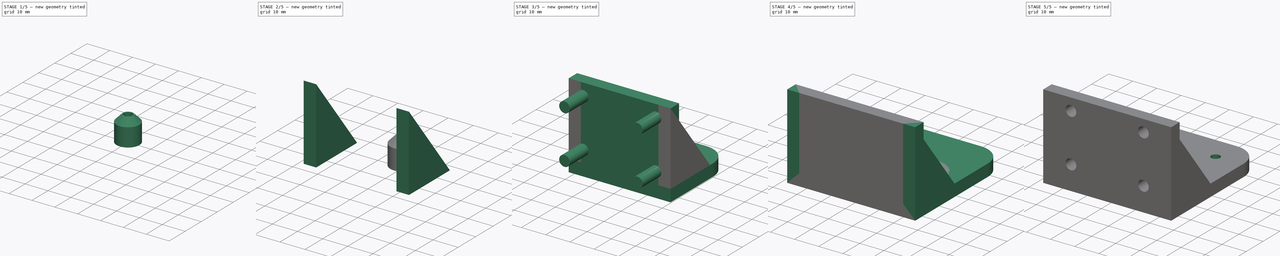
[diagram: build sequence overview — one tinted view per stage of 5, left to right]
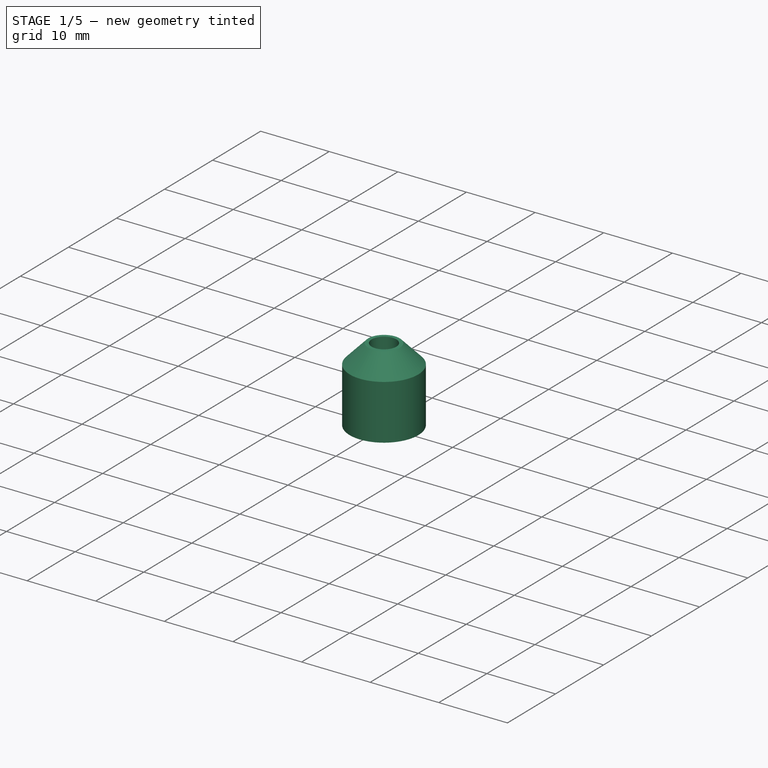
[diagram: stage 1 of 5 — iso view after this stage's code; geometry added in this stage tinted green]
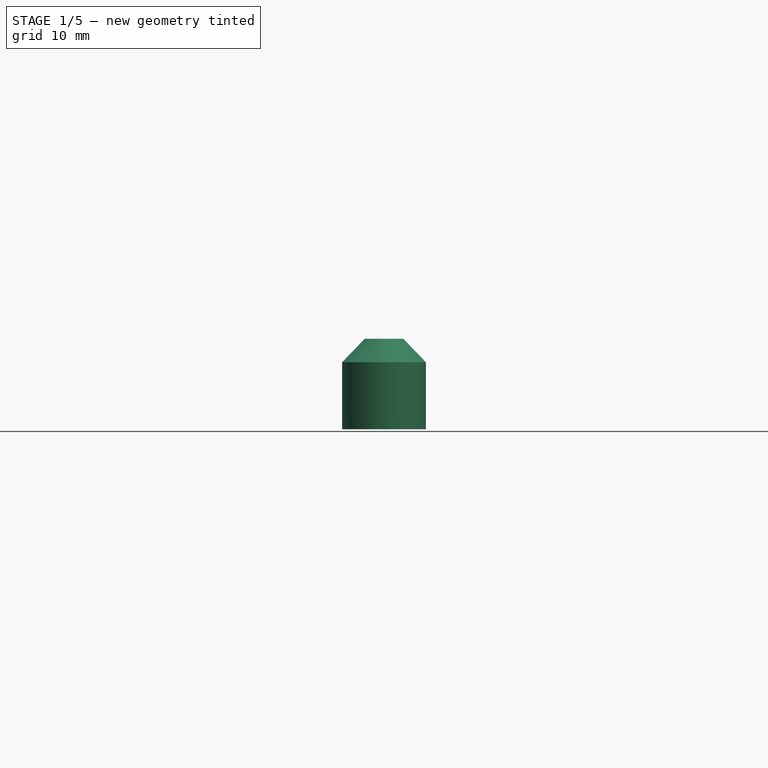
[diagram: stage 1 of 5 — front view after this stage's code; geometry added in this stage tinted green]
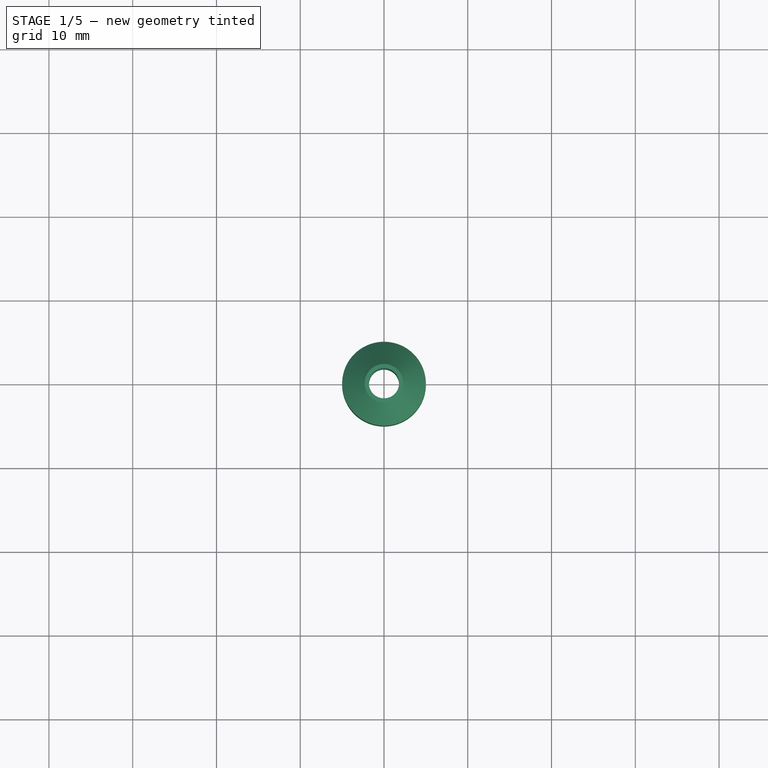
[diagram: stage 1 of 5 — top view after this stage's code; geometry added in this stage tinted green]
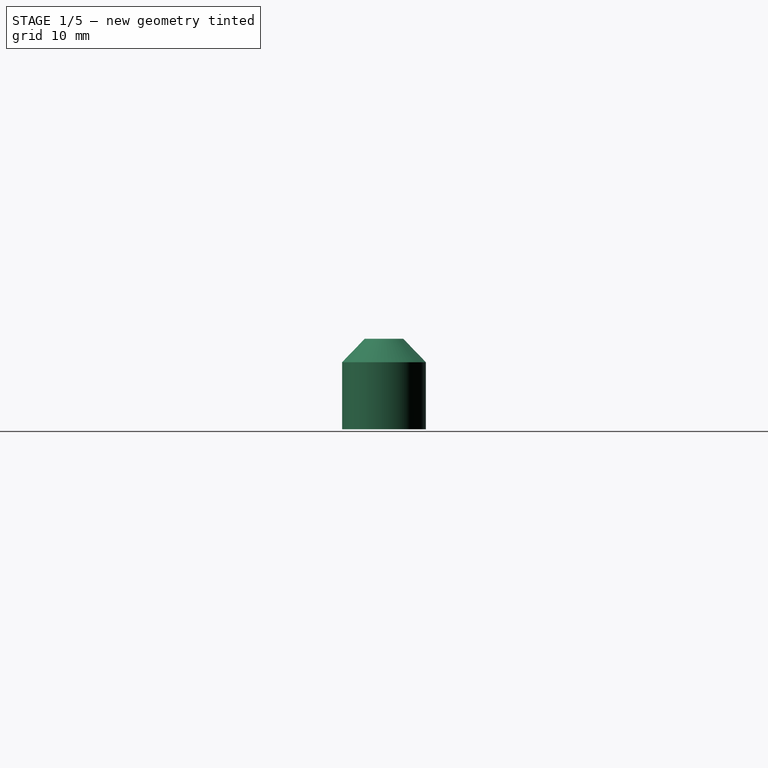
[diagram: stage 1 of 5 — right view after this stage's code; geometry added in this stage tinted green]
FCSTD DOCUMENT  (FreeCAD 0.19R)
Label: stepper_mount
License: All rights reserved
LicenseURL: http://en.wikipedia.org/wiki/All_rights_reserved
objects: Part::Cylinder×5, Part::FeaturePython×5, Part::MultiFuse×5, Part::Box×4, App::Part×4, Part::Cut×3, Part::Fillet×2, Spreadsheet::Sheet×1, PartDesign::ShapeBinder×1, Sketcher::SketchObject×1, PartDesign::Pad×1, PartDesign::Body×1, Part::Cone×1
note: 26 computed .brp shape members not serialized (recipe doc carries the construction recipe); baked Part::Feature solids carry a one-line shape summary decoded from their .brp

FEATURE [App::Part] Part003  label="pulley mount part"
  Group = -> [Cut005]
  Origin = -> Origin009
FEATURE [Part::FeaturePython] Tube  label="pulley washer tube"  # WARN: FeaturePython — macro-defined, semantics opaque (R4)
  AttacherType = Attacher::AttachEngine3D
  Height = 8
  InnerRadius = 1.8
  OuterRadius = 5
  expr: InnerRadius = <<p_stepper>>.bolt_hole_r
FEATURE [Part::Cone] Cone  label="puller washer cone"
  Angle = 360
  AttacherType = Attacher::AttachEngine3D
  Height = 2.8
  Radius1 = 5
  Radius2 = 2.3
  expr: Radius1 = <<pulley washer tube>>.OuterRadius
FEATURE [Part::Cylinder] Cylinder100  label="puller washer cone hole"
  Angle = 360
  AttacherType = Attacher::AttachEngine3D
  Height = 2.8
  Radius = 1.8
  expr: Radius = <<p_stepper>>.bolt_hole_r
  expr: Height = <<puller washer cone>>.Height
FEATURE [Part::Cut] Cut  label="puller washer cone cut"
  Base = -> Cone
  Placement = pos=(0,0,8) rot=(0,0,1;0rad)
  Tool = -> Cylinder100
  expr: .Placement.Base.z = <<pulley washer tube>>.Height
FEATURE [Part::MultiFuse] Fusion  label="puller mount washer"
  Shapes = -> [Tube,Cut]
FEATURE [App::Part] Part  label="pulley mount washer part"
  Group = -> [Fusion]
  Origin = -> Origin
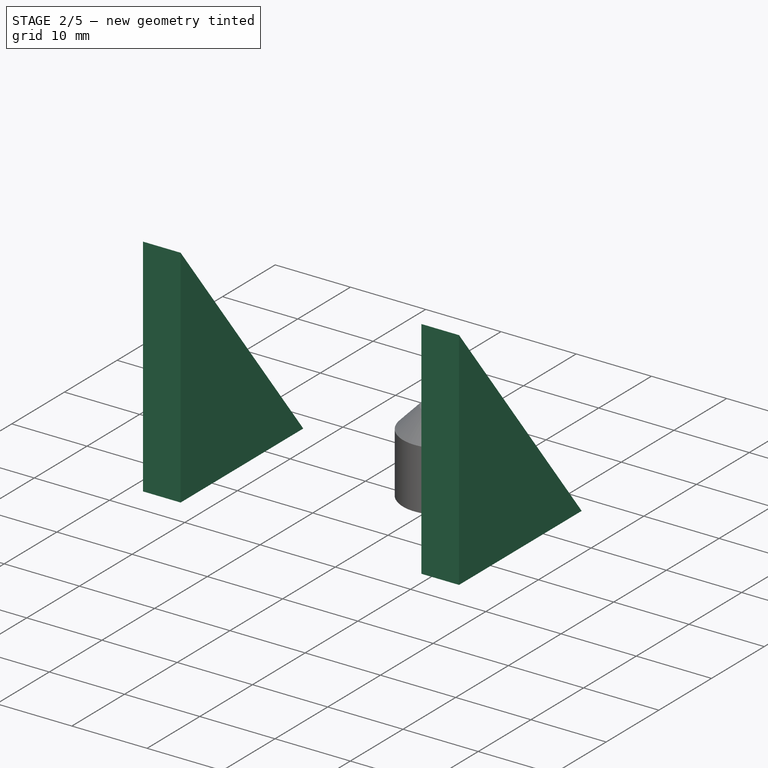
[diagram: stage 2 of 5 — iso view after this stage's code; geometry added in this stage tinted green]
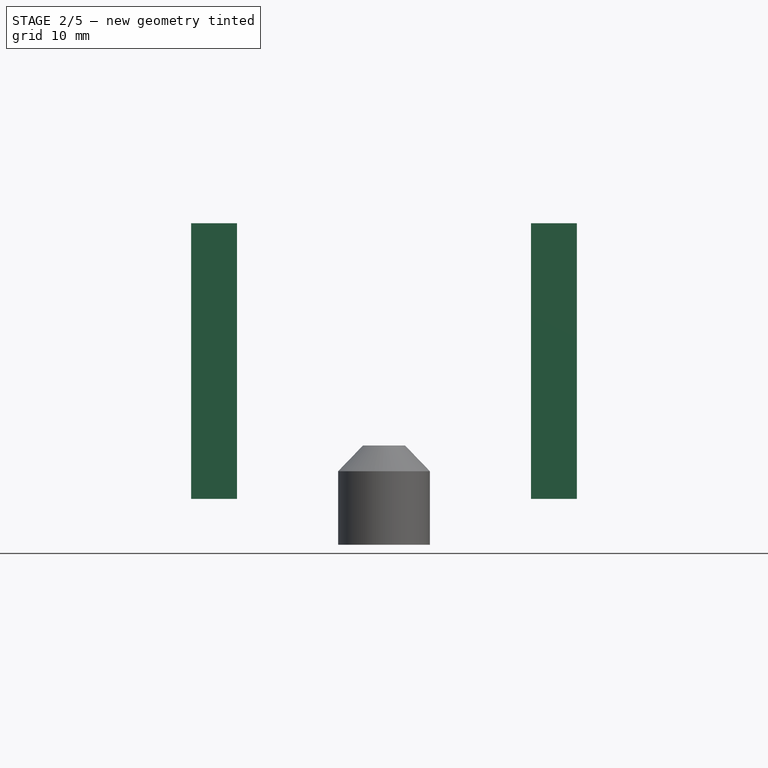
[diagram: stage 2 of 5 — front view after this stage's code; geometry added in this stage tinted green]
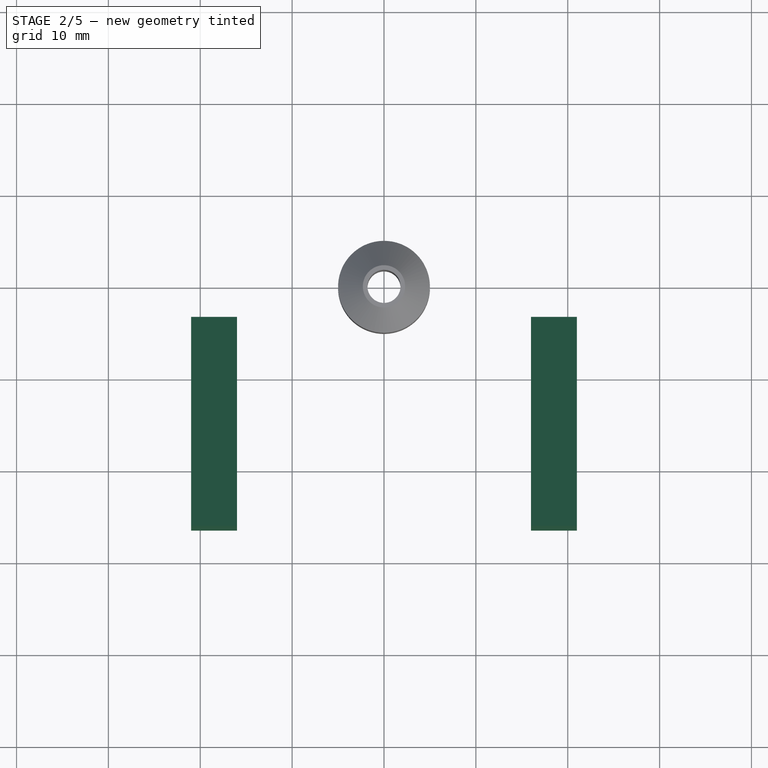
[diagram: stage 2 of 5 — top view after this stage's code; geometry added in this stage tinted green]
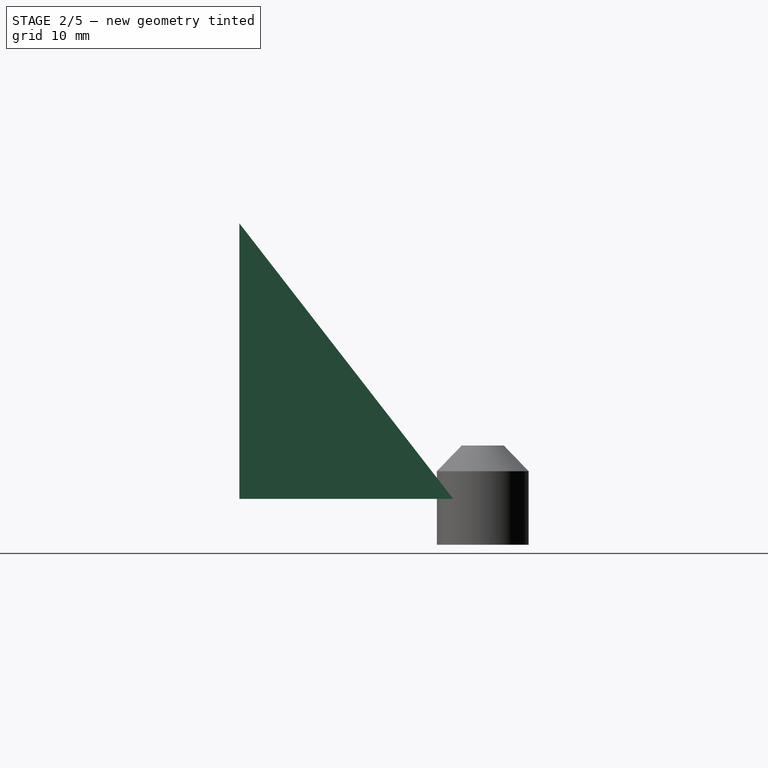
[diagram: stage 2 of 5 — right view after this stage's code; geometry added in this stage tinted green]
FEATURE [Part::Box] Box005  label="stepper mount cube"
  AttacherType = Attacher::AttachEngine3D
  Height = 5
  Length = 53
  Placement = pos=(-26.5,-26.5,0) rot=(0,0,1;0rad)
  Width = 53
  expr: .Placement.Base.x = -Length / 2
  expr: .Placement.Base.y = -Width / 2
  expr: Width = <<p_stepper>>.stepper_size + 2 * <<p_stepper>>.stepper_mount_wall
  expr: Length = <<p_stepper>>.stepper_size + 2 * <<p_stepper>>.stepper_mount_wall
  expr: Height = <<p_stepper>>.stepper_mount_wall
FEATURE [PartDesign::ShapeBinder] ShapeBinder
  Placement = pos=(-26.5,-26.5,0) rot=(0,0,1;0rad)
  Support = -> [Box005]
  TraceSupport = false
FEATURE [Sketcher::SketchObject] Sketch001
  ExternalGeometry = -> [ShapeBinder]
  FullyConstrained = false
  MapMode = 5
  Placement = pos=(0,0,0) rot=(0.57735,0.57735,0.57735;2.0944rad)
  Support = -> [YZ_Plane008]
  expr: Constraints[6] = <<p_stepper>>.bottom_plate_size
  sketch-geometry (3):
    g0: LineSegment StartX=-26.5 StartY=5 StartZ=0 EndX=-3.22422 EndY=5 EndZ=0
    g1: LineSegment StartX=-3.22422 StartY=5 StartZ=0 EndX=-26.5 EndY=35 EndZ=0
    g2: LineSegment StartX=-26.5 StartY=35 StartZ=0 EndX=-26.5 EndY=5 EndZ=0
  constraints (7):
    c: Coincident(g0,g-3)
    c: Horizontal(g0)
    c: Coincident(g1,g0)
    c: Coincident(g2,g1)
    c: Coincident(g2,g0)
    c: Vertical(g2)
    c: DistanceY(g2,g2) = 30
FEATURE [PartDesign::Pad] Pad001
  Direction = (1,1,1)
  Length = 5
  Length2 = 100
  Placement = pos=(0,0,0) rot=(0.57735,0.57735,0.57735;2.0944rad)
  Profile = -> Sketch001
  Type = 0
  expr: Length = <<p_stepper>>.stepper_mount_wall
FEATURE [Part::Box] Box007  label="pulley mount bottom"
  AttacherType = Attacher::AttachEngine3D
  Height = 30
  Length = 42
  Placement = pos=(-21,-26.5,5) rot=(0,0,1;0rad)
  Width = 5
  expr: Width = <<p_stepper>>.stepper_mount_wall
  expr: .Placement.Base.x = -Length / 2
  expr: .Placement.Base.y = -<<p_stepper>>.stepper_size / 2 - <<p_stepper>>.stepper_mount_wall
  expr: Height = <<p_stepper>>.bottom_plate_size
  expr: .Placement.Base.z = <<p_stepper>>.stepper_mount_wall
FEATURE [Part::Box] Box008  label="pulley mount cube"
  AttacherType = Attacher::AttachEngine3D
  Height = 5
  Length = 42
  Placement = pos=(-21,-26.5,0) rot=(0,0,1;0rad)
  Width = 35
  expr: Height = <<p_stepper>>.stepper_mount_wall
  expr: Length = <<pulley mount bottom>>.Length
  expr: .Placement.Base.y = -<<p_stepper>>.stepper_size / 2 - <<p_stepper>>.stepper_mount_wall
  expr: .Placement.Base.x = -Length / 2
FEATURE [Part::FeaturePython] Array003  label="side array001"  # Draft array (typed FeaturePython)
  Angle = 360
  ArrayType = 0
  Axis = (0,0,1)
  Base = -> Pad001
  Center = (0,0,0)
  Count = 2
  ExpandArray = false
  Fuse = false
  IntervalAxis = (0,0,0)
  IntervalX = (37,0,0)
  IntervalY = (0,100,0)
  IntervalZ = (0,0,100)
  NumberCircles = 3
  NumberPolar = 5
  NumberX = 2
  NumberY = 1
  NumberZ = 1
  Placement = pos=(-21,0,0) rot=(0,0,1;0rad)
  PlacementList = 2 placements: [(0,0,0),(37,0,0)]
  RadialDistance = 50
  ScaleList = (2) [(1,1,1),(1,1,1)]
  Symmetry = 1
  TangentialDistance = 25
  expr: .IntervalX.x = <<pulley mount cube>>.Length - <<p_stepper>>.stepper_mount_wall
  expr: .Placement.Base.x = -(.IntervalX.x + <<p_stepper>>.stepper_mount_wall) / 2
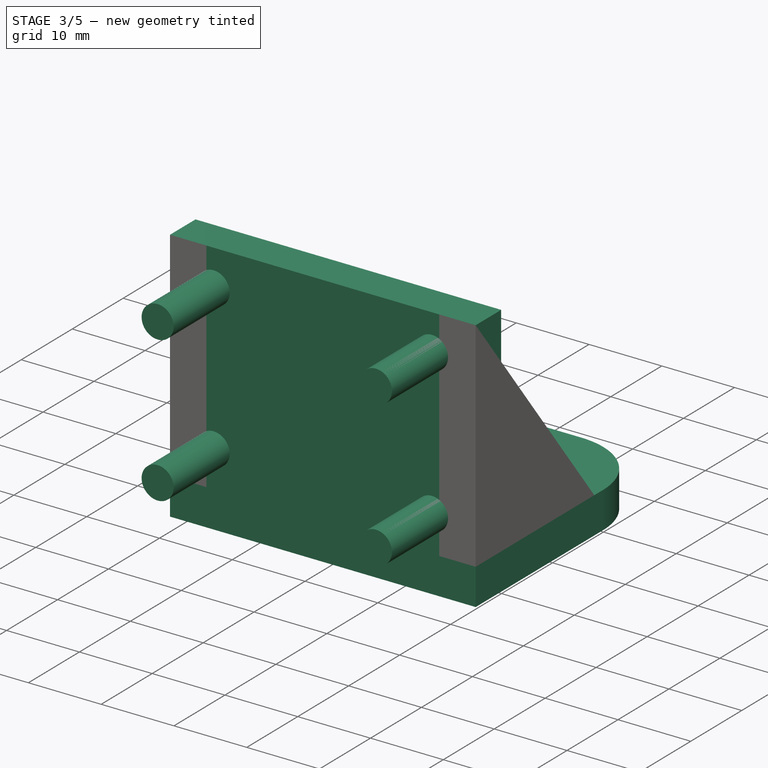
[diagram: stage 3 of 5 — iso view after this stage's code; geometry added in this stage tinted green]
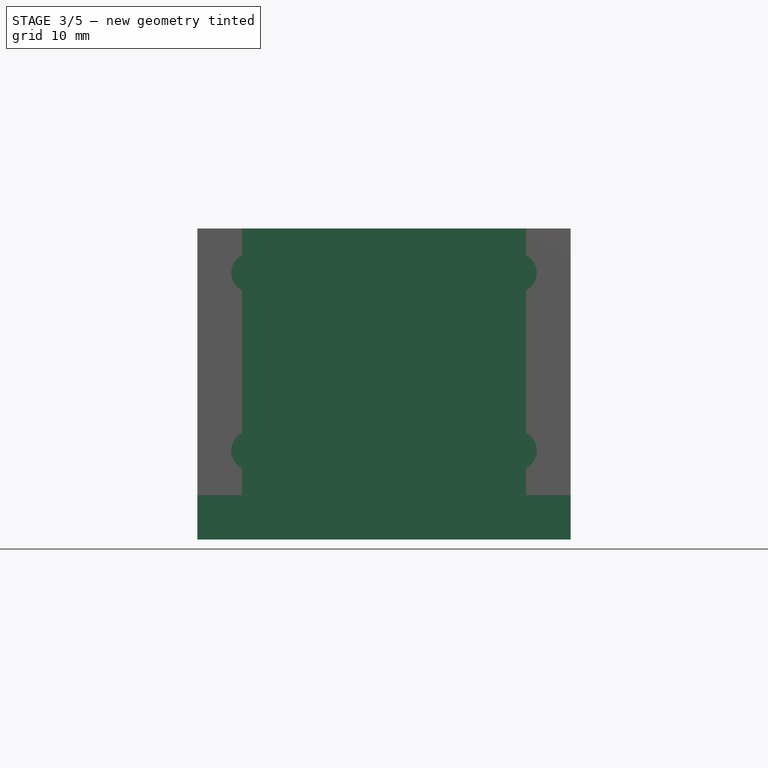
[diagram: stage 3 of 5 — front view after this stage's code; geometry added in this stage tinted green]
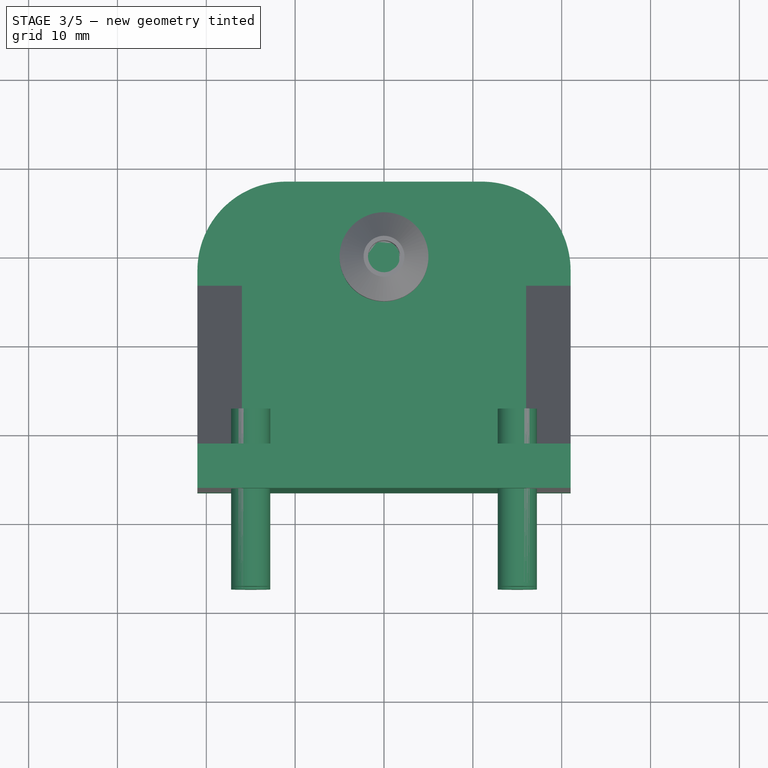
[diagram: stage 3 of 5 — top view after this stage's code; geometry added in this stage tinted green]
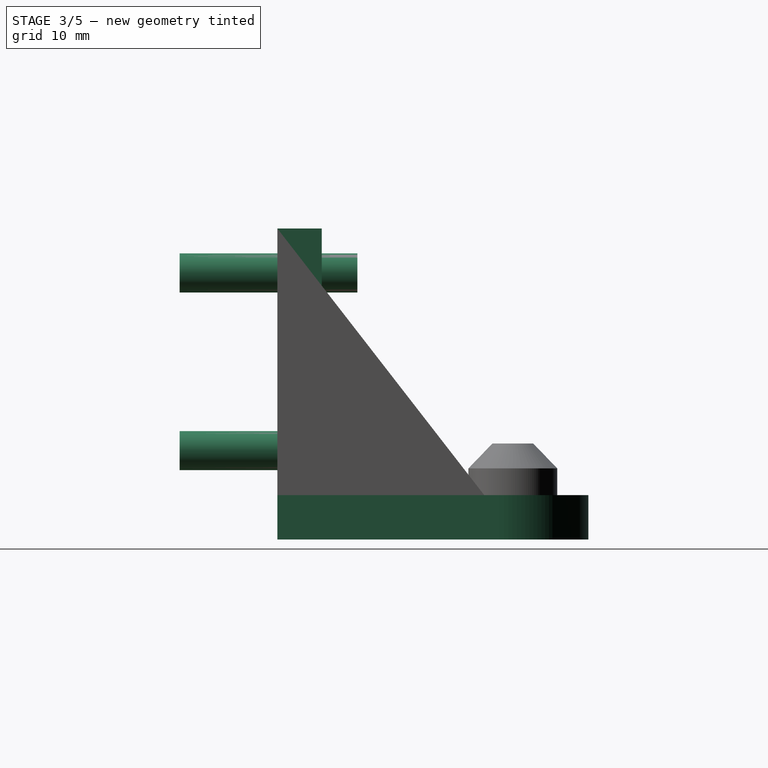
[diagram: stage 3 of 5 — right view after this stage's code; geometry added in this stage tinted green]
FEATURE [PartDesign::Body] Body004
  Group = -> [ShapeBinder,Sketch001,Pad001]
  Origin = -> Origin008
  Tip = -> Pad001
FEATURE [App::Part] Part002  label="side triangle part"
  Group = -> [Body004]
  Origin = -> Origin007
FEATURE [Part::Cylinder] Cylinder  label="insert hole"
  Angle = 360
  AttacherType = Attacher::AttachEngine3D
  Height = 20
  Placement = pos=(0,0,-3) rot=(0,0,1;0rad)
  Radius = 2.2
  expr: Radius = <<p_stepper>>.insert_hole_r
FEATURE [Part::FeaturePython] Array  label="insert hole array"  # Draft array (typed FeaturePython)
  Angle = 360
  ArrayType = 0
  Axis = (0,0,1)
  Base = -> Cylinder
  Center = (0,0,0)
  Count = 4
  ExpandArray = false
  Fuse = false
  IntervalAxis = (0,0,0)
  IntervalX = (30,0,0)
  IntervalY = (0,20,0)
  IntervalZ = (0,0,100)
  NumberCircles = 3
  NumberPolar = 5
  NumberX = 2
  NumberY = 2
  NumberZ = 1
  Placement = pos=(-15,-20.5,10) rot=(1,0,0;1.5708rad)
  PlacementList = 4 placements: [(0,0,-3),(0,20,-3),(30,0,-3),(30,20,-3)]
  RadialDistance = 50
  ScaleList = (4) [(1,1,1),(1,1,1),(1,1,1),(1,1,1)]
  Symmetry = 1
  TangentialDistance = 25
  expr: .IntervalX.x = <<p_stepper>>.insert_hole_x_dist
  expr: .IntervalY.y = <<p_stepper>>.insert_hole_y_dist
  expr: .Placement.Base.y = -<<p_stepper>>.bolt_hole_dist / 2 - <<p_stepper>>.stepper_mount_wall
  expr: .Placement.Base.x = -.IntervalX.x / 2
  expr: .Placement.Base.z = .IntervalY.y / 2
FEATURE [App::Part] Part001  label="stepper mount part"
  Group = -> [Cut004]
  Origin = -> Origin005
FEATURE [Part::Cylinder] Cylinder099  label="pulley central hole"
  Angle = 360
  AttacherType = Attacher::AttachEngine3D
  Height = 5
  Radius = 1.8
  expr: Radius = <<p_stepper>>.puller_hole_r
  expr: Height = <<p_stepper>>.stepper_mount_wall
FEATURE [Part::MultiFuse] Fusion008  label="stepper mount holes001"
  Shapes = -> [Array,Cylinder099]
FEATURE [Part::Fillet] Fillet002  label="stepper mount cube fillet001"
  Base = -> Box008
  Edges = 2 edges r=10: [Edge3,Edge7]
FEATURE [Part::MultiFuse] Fusion009  label="pulley mount fusion"
  Shapes = -> [Box007,Fillet002,Array003]
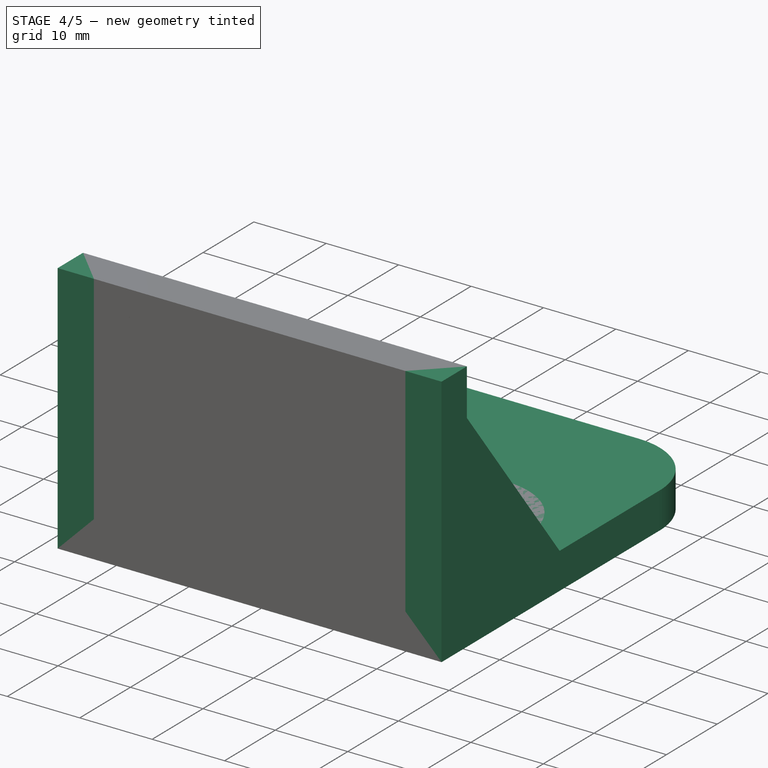
[diagram: stage 4 of 5 — iso view after this stage's code; geometry added in this stage tinted green]
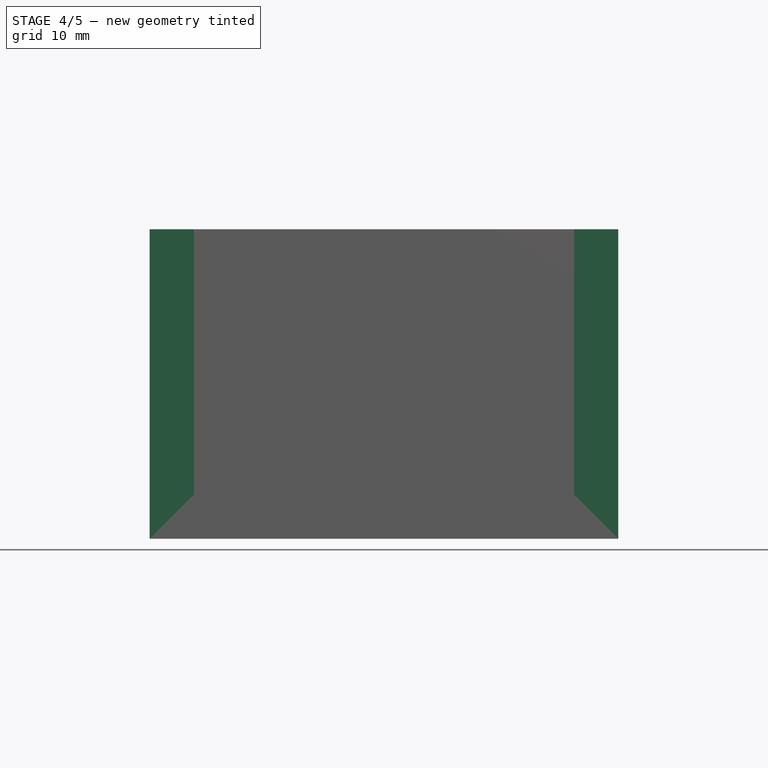
[diagram: stage 4 of 5 — front view after this stage's code; geometry added in this stage tinted green]
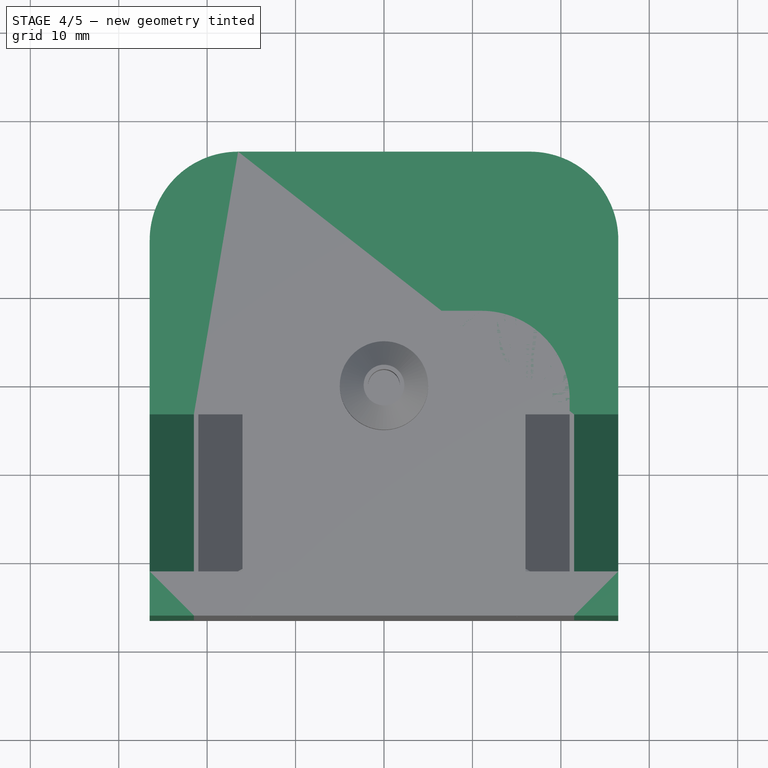
[diagram: stage 4 of 5 — top view after this stage's code; geometry added in this stage tinted green]
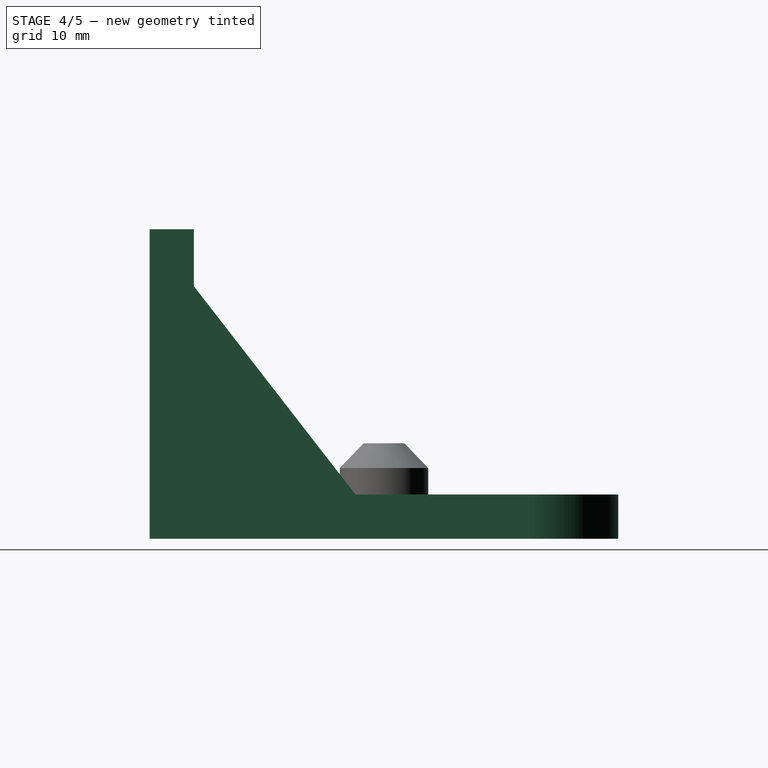
[diagram: stage 4 of 5 — right view after this stage's code; geometry added in this stage tinted green]
FEATURE [Part::Box] Box006  label="stepper mount bottom"
  AttacherType = Attacher::AttachEngine3D
  Height = 30
  Length = 53
  Placement = pos=(-26.5,-26.5,5) rot=(0,0,1;0rad)
  Width = 5
  expr: .Placement.Base.z = <<p_stepper>>.stepper_mount_wall
  expr: Height = <<p_stepper>>.bottom_plate_size
  expr: .Placement.Base.y = -<<p_stepper>>.stepper_size / 2 - <<p_stepper>>.stepper_mount_wall
  expr: .Placement.Base.x = -Length / 2
  expr: Length = <<p_stepper>>.stepper_size + 2 * <<p_stepper>>.stepper_mount_wall
  expr: Width = <<p_stepper>>.stepper_mount_wall
FEATURE [Part::Fillet] Fillet001  label="stepper mount cube fillet"
  Base = -> Box005
  Edges = 2 edges r=10: [Edge3,Edge7]
FEATURE [Part::FeaturePython] Array002  label="side array"  # Draft array (typed FeaturePython)
  Angle = 360
  ArrayType = 0
  Axis = (0,0,1)
  Base = -> Pad001
  Center = (0,0,0)
  Count = 2
  ExpandArray = false
  Fuse = false
  IntervalAxis = (0,0,0)
  IntervalX = (48,0,0)
  IntervalY = (0,100,0)
  IntervalZ = (0,0,100)
  NumberCircles = 3
  NumberPolar = 5
  NumberX = 2
  NumberY = 1
  NumberZ = 1
  Placement = pos=(-26.5,0,0) rot=(0,0,1;0rad)
  PlacementList = 2 placements: [(0,0,0),(48,0,0)]
  RadialDistance = 50
  ScaleList = (2) [(1,1,1),(1,1,1)]
  Symmetry = 1
  TangentialDistance = 25
  expr: .Placement.Base.x = -(.IntervalX.x + <<p_stepper>>.stepper_mount_wall) / 2
  expr: .IntervalX.x = <<stepper mount cube>>.Length - <<p_stepper>>.stepper_mount_wall
FEATURE [Part::MultiFuse] Fusion007  label="stepper mount fusion"
  Shapes = -> [Array002,Box006,Fillet001]
FEATURE [Part::Cut] Cut005  label="pulley mount cut"
  Base = -> Fusion009
  Tool = -> Fusion008
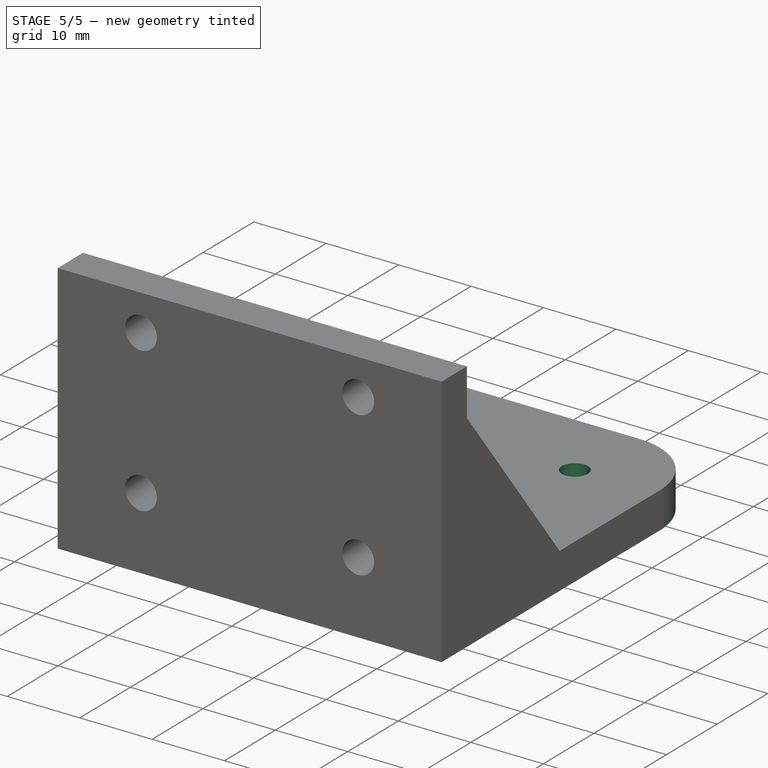
[diagram: stage 5 of 5 — iso view after this stage's code; geometry added in this stage tinted green]
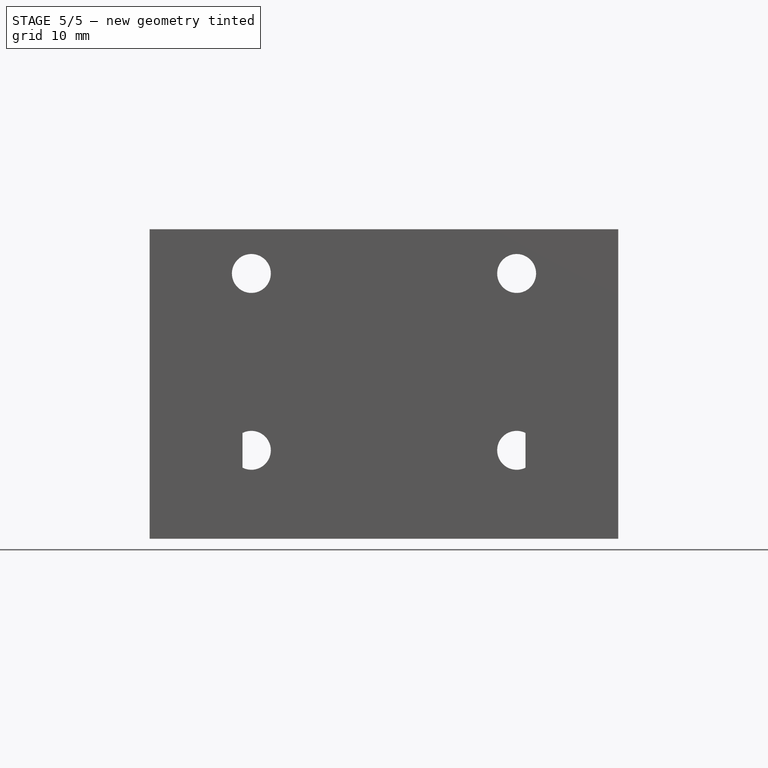
[diagram: stage 5 of 5 — front view after this stage's code; geometry added in this stage tinted green]
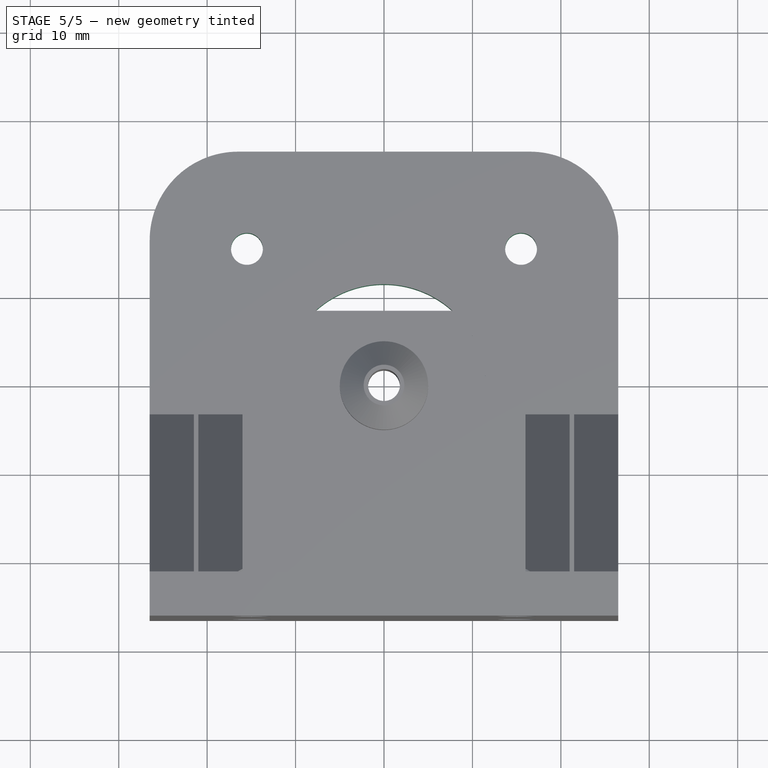
[diagram: stage 5 of 5 — top view after this stage's code; geometry added in this stage tinted green]
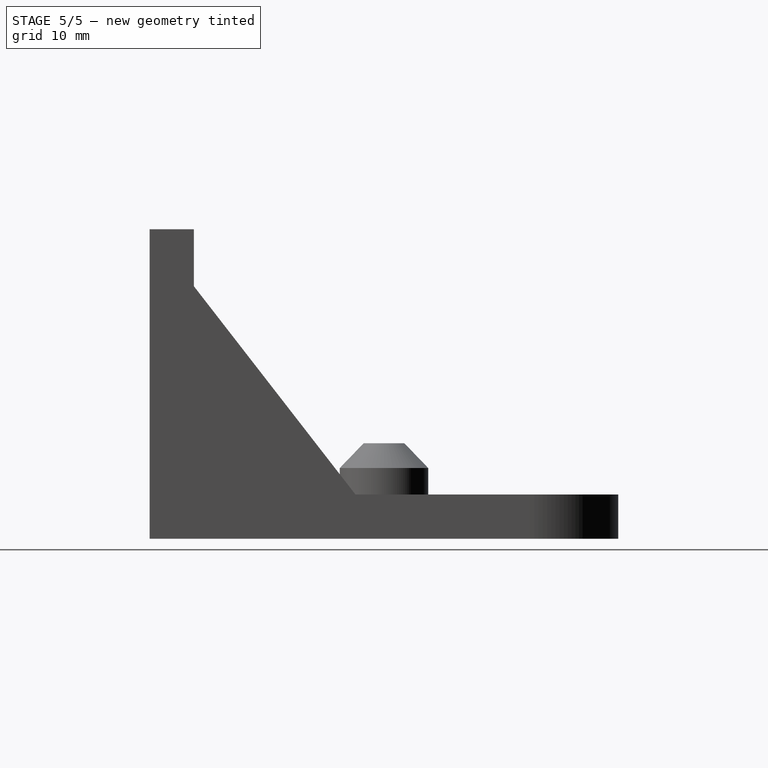
[diagram: stage 5 of 5 — right view after this stage's code; geometry added in this stage tinted green]
FEATURE [Spreadsheet::Sheet] Spreadsheet002  label="p_stepper"
  cells = A1=stepper_mount_wall; B1(stepper_mount_wall)==5mm; A2=bolt_hole_dist; B2(bolt_hole_dist)==31mm; A3=central_hole_r; B3(central_hole_r)==11.5mm; A4=bolt_hole_r; B4(bolt_hole_r)==1.8mm; A5=stepper_size; B5(stepper_size)==43mm; A6=bottom_plate_size; B6(bottom_plate_size)==30mm; A7=insert_hole_r; B7(insert_hole_r)==2.2mm; A8=insert_hole_x_dist; B8(insert_hole_x_dist)==30mm; A9=insert_hole_y_dist; B9(insert_hole_y_dist)==20mm; A10=puller_hole_r; B10(puller_hole_r)==1.8mm
FEATURE [Part::Cylinder] Cylinder097  label="stepper central hole"
  Angle = 360
  AttacherType = Attacher::AttachEngine3D
  Height = 5
  Radius = 11.5
  expr: Height = <<p_stepper>>.stepper_mount_wall
  expr: Radius = <<p_stepper>>.central_hole_r
FEATURE [Part::Cylinder] Cylinder098  label="stepper bolt hole"
  Angle = 360
  AttacherType = Attacher::AttachEngine3D
  Height = 5
  Radius = 1.8
  expr: Height = <<p_stepper>>.stepper_mount_wall
  expr: Radius = <<p_stepper>>.bolt_hole_r
FEATURE [Part::FeaturePython] Array001  label="stepper bolt hole array"  # Draft array (typed FeaturePython)
  Angle = 360
  ArrayType = 0
  Axis = (0,0,1)
  Base = -> Cylinder098
  Center = (0,0,0)
  Count = 4
  ExpandArray = false
  Fuse = false
  IntervalAxis = (0,0,0)
  IntervalX = (31,0,0)
  IntervalY = (0,31,0)
  IntervalZ = (0,0,100)
  NumberCircles = 3
  NumberPolar = 5
  NumberX = 2
  NumberY = 2
  NumberZ = 1
  Placement = pos=(-15.5,-15.5,0) rot=(0,0,1;0rad)
  PlacementList = 4 placements: [(0,0,0),(0,31,0),(31,0,0),(31,31,0)]
  RadialDistance = 50
  ScaleList = (4) [(1,1,1),(1,1,1),(1,1,1),(1,1,1)]
  Symmetry = 1
  TangentialDistance = 25
  expr: .Placement.Base.y = -.IntervalY.y / 2
  expr: .Placement.Base.x = -.IntervalX.x / 2
  expr: .IntervalY.y = <<p_stepper>>.bolt_hole_dist
  expr: .IntervalX.x = <<p_stepper>>.bolt_hole_dist
FEATURE [Part::MultiFuse] Fusion006  label="stepper mount holes"
  Shapes = -> [Cylinder097,Array001,Array]
FEATURE [Part::Cut] Cut004  label="stepper mount cut"
  Base = -> Fusion007
  Tool = -> Fusion006
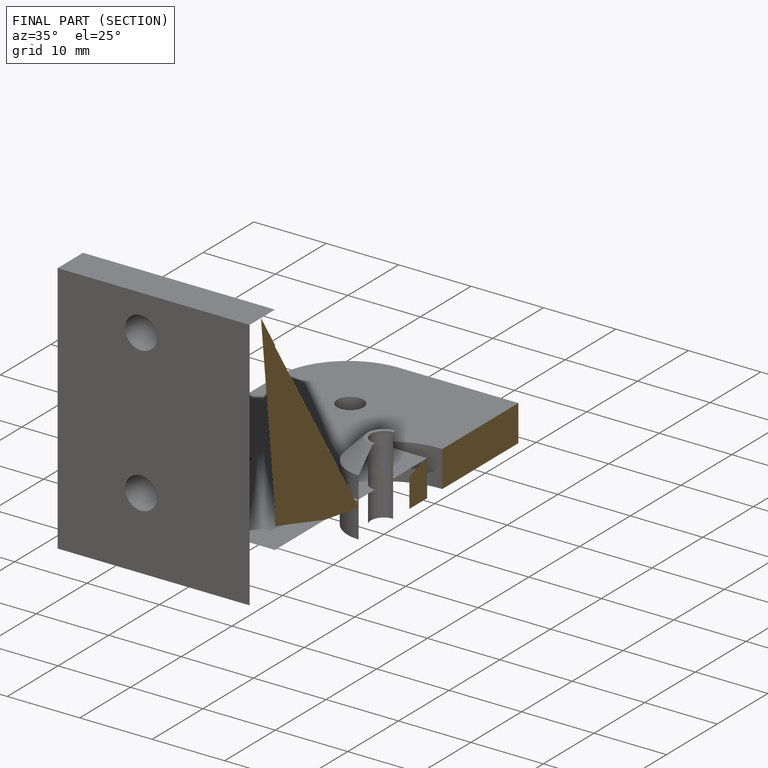
[diagram: finished part — half-section view (interior)]
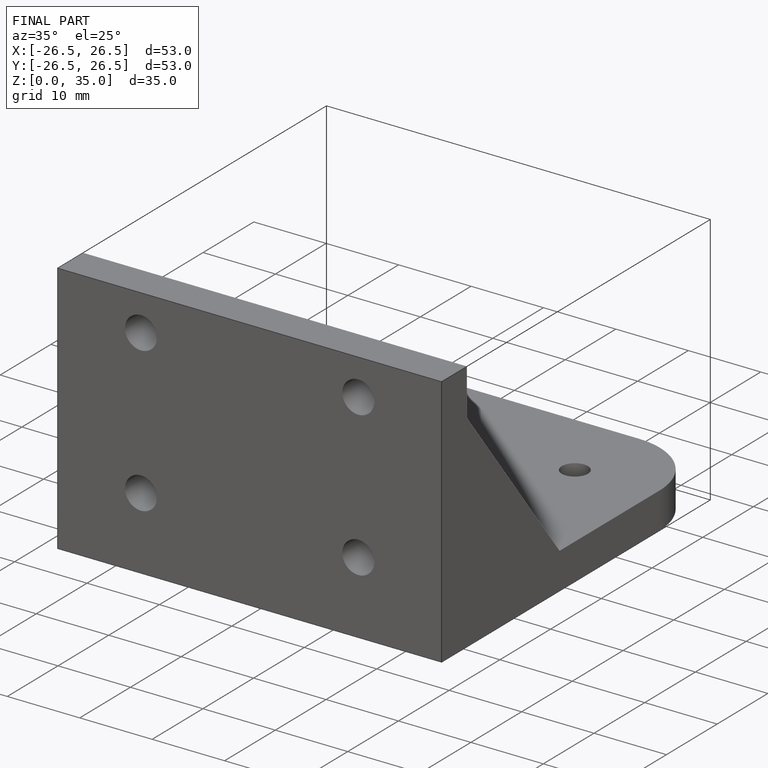
[diagram: finished part — iso view with bounding-box wireframe]
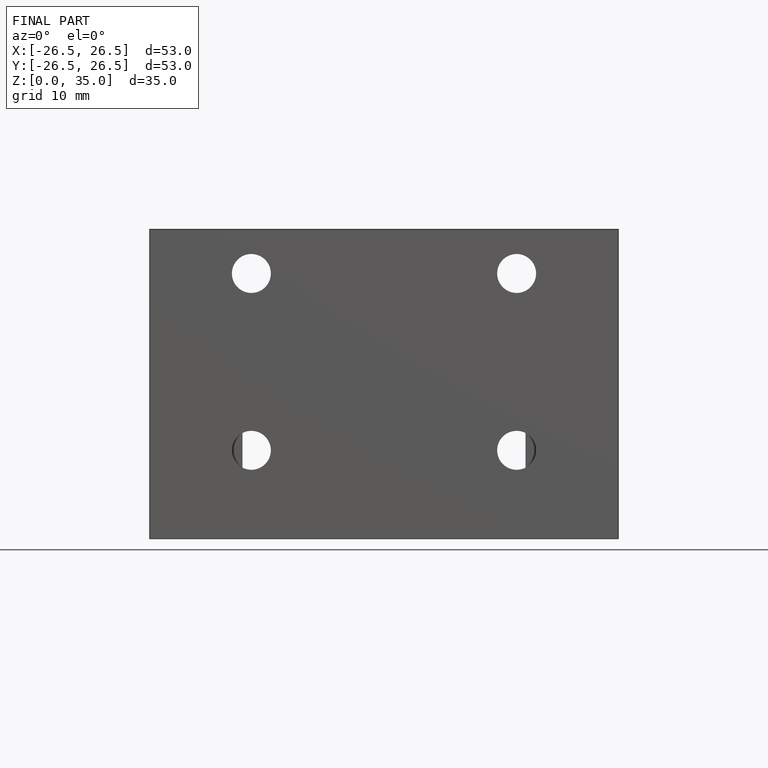
[diagram: finished part — front view with bounding-box wireframe]
